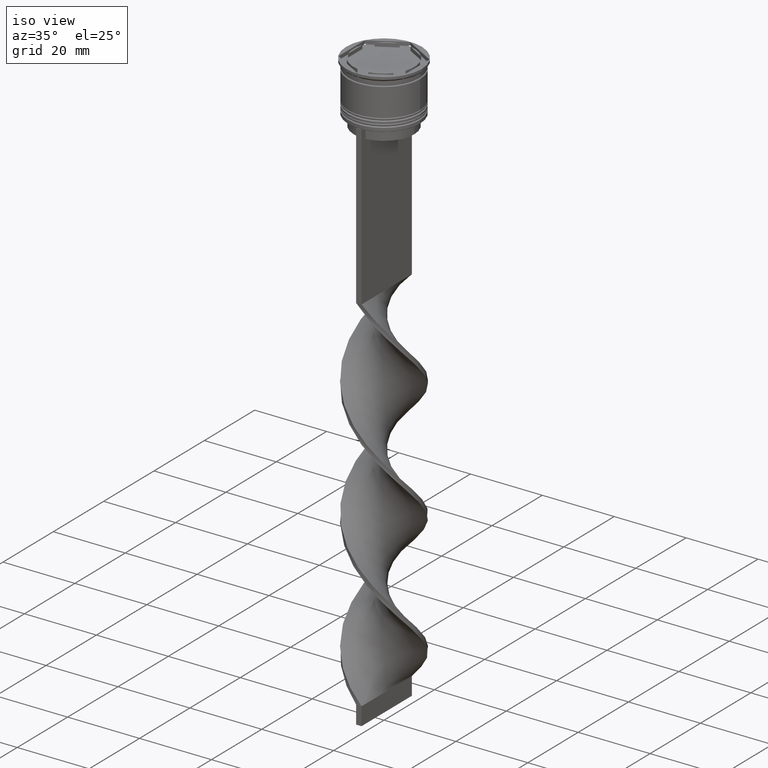
[diagram: clean part render]
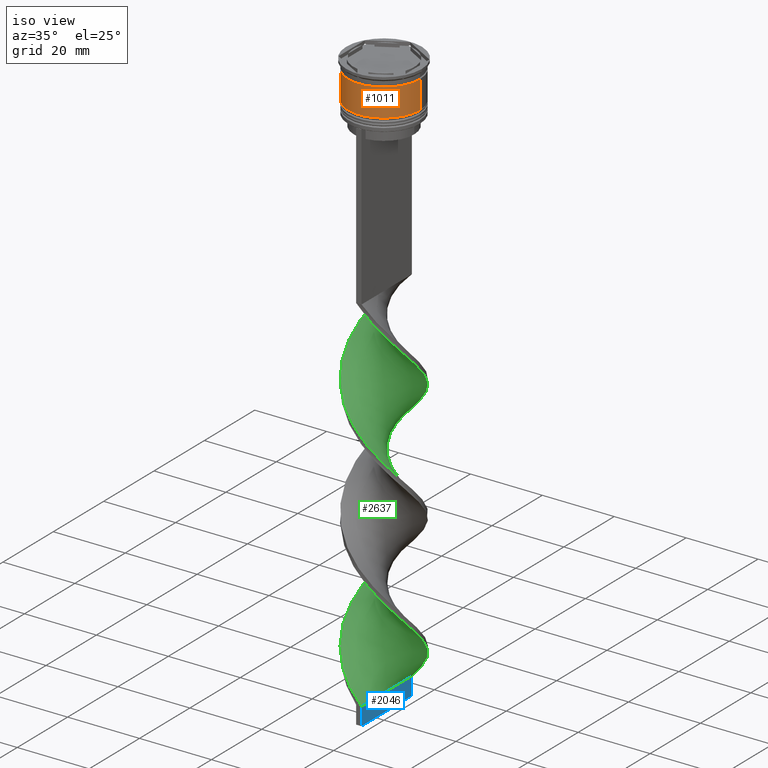
[diagram: same view with three faces highlighted in distinct colors, each labeled with its STEP entity id]
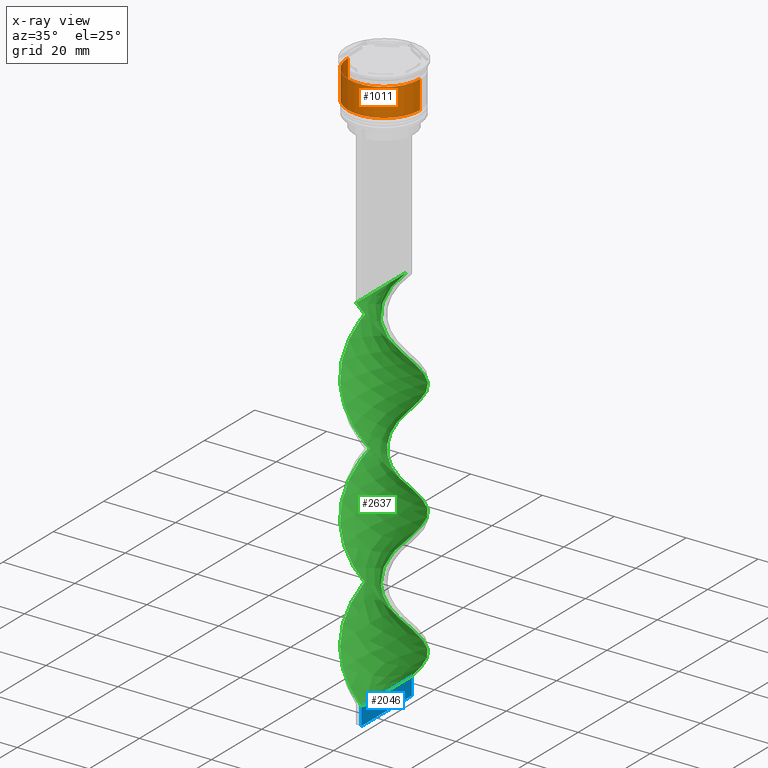
[diagram: x-ray of the same camera — body ghosted, the three highlighted faces saturated]
A machine part, iso view with three faces highlighted in distinct colors.
The next image is the same camera in x-ray (body ghosted, the three faces saturated) — at least one of them is partly hidden behind the body in this view.
Their STEP definitions:

[orange] entity #1011 — the highlighted cylindrical surface (partial cylindrical patch) has radius 10 mm, axis along (-0, -0, 1).
#68 = EDGE_LOOP ( 'NONE', ( #759, #2408, #1324, #3690 ) ) ;
#88 = DIRECTION ( 'NONE',  ( -0.000000000000000000, -0.000000000000000000, 1.000000000000000000 ) ) ;
#125 = CIRCLE ( 'NONE', #3365, 9.999999999999998224 ) ;
#135 = VECTOR ( 'NONE', #1014, 1000.000000000000000 ) ;
#285 = VERTEX_POINT ( 'NONE', #2729 ) ;
#300 = EDGE_CURVE ( 'NONE', #3012, #285, #2099, .T. ) ;
#491 = CARTESIAN_POINT ( 'NONE',  ( 10.00000000000000178, 0.000000000000000000, -10.50000000000000000 ) ) ;
#544 = DIRECTION ( 'NONE',  ( 1.000000000000000000, 0.000000000000000000, 0.000000000000000000 ) ) ;
#759 = ORIENTED_EDGE ( 'NONE', *, *, #300, .F. ) ;
#806 = EDGE_CURVE ( 'NONE', #285, #2820, #125, .T. ) ;
#820 = CARTESIAN_POINT ( 'NONE',  ( -10.00000000000000178, 1.224646799147353454E-15, -10.50000000000000000 ) ) ;
#1011 = ADVANCED_FACE ( 'NONE', ( #2470 ), #2218, .T. ) ;
#1014 = DIRECTION ( 'NONE',  ( -0.000000000000000000, -0.000000000000000000, 1.000000000000000000 ) ) ;
#1136 = DIRECTION ( 'NONE',  ( -0.000000000000000000, -0.000000000000000000, 1.000000000000000000 ) ) ;
#1144 = EDGE_CURVE ( 'NONE', #3012, #2455, #1847, .T. ) ;
#1324 = ORIENTED_EDGE ( 'NONE', *, *, #1828, .T. ) ;
#1828 = EDGE_CURVE ( 'NONE', #2455, #2820, #2522, .T. ) ;
#1847 = CIRCLE ( 'NONE', #3181, 10.00000000000000178 ) ;
#2037 = CARTESIAN_POINT ( 'NONE',  ( 0.000000000000000000, 0.000000000000000000, -10.50000000000000000 ) ) ;
#2099 = LINE ( 'NONE', #3919, #2406 ) ;
#2218 = CYLINDRICAL_SURFACE ( 'NONE', #2657, 10.00000000000000000 ) ;
#2406 = VECTOR ( 'NONE', #3349, 1000.000000000000000 ) ;
#2408 = ORIENTED_EDGE ( 'NONE', *, *, #1144, .T. ) ;
#2455 = VERTEX_POINT ( 'NONE', #491 ) ;
#2470 = FACE_OUTER_BOUND ( 'NONE', #68, .T. ) ;
#2522 = LINE ( 'NONE', #2842, #135 ) ;
#2657 = AXIS2_PLACEMENT_3D ( 'NONE', #2772, #88, #3429 ) ;
#2729 = CARTESIAN_POINT ( 'NONE',  ( -9.999999999999998224, 1.224646799147353256E-15, -2.700000000000001954 ) ) ;
#2772 = CARTESIAN_POINT ( 'NONE',  ( 0.000000000000000000, 0.000000000000000000, 0.000000000000000000 ) ) ;
#2820 = VERTEX_POINT ( 'NONE', #3475 ) ;
#2842 = CARTESIAN_POINT ( 'NONE',  ( 10.00000000000000000, 0.000000000000000000, 0.000000000000000000 ) ) ;
#3012 = VERTEX_POINT ( 'NONE', #820 ) ;
#3181 = AXIS2_PLACEMENT_3D ( 'NONE', #2037, #1136, #3284 ) ;
#3284 = DIRECTION ( 'NONE',  ( 1.000000000000000000, 0.000000000000000000, 0.000000000000000000 ) ) ;
#3349 = DIRECTION ( 'NONE',  ( -0.000000000000000000, -0.000000000000000000, 1.000000000000000000 ) ) ;
#3365 = AXIS2_PLACEMENT_3D ( 'NONE', #3909, #3835, #544 ) ;
#3429 = DIRECTION ( 'NONE',  ( 1.000000000000000000, 0.000000000000000000, 0.000000000000000000 ) ) ;
#3475 = CARTESIAN_POINT ( 'NONE',  ( 9.999999999999998224, 0.000000000000000000, -2.700000000000001954 ) ) ;
#3690 = ORIENTED_EDGE ( 'NONE', *, *, #806, .F. ) ;
#3835 = DIRECTION ( 'NONE',  ( -0.000000000000000000, -0.000000000000000000, 1.000000000000000000 ) ) ;
#3909 = CARTESIAN_POINT ( 'NONE',  ( 0.000000000000000000, 0.000000000000000000, -2.700000000000001954 ) ) ;
#3919 = CARTESIAN_POINT ( 'NONE',  ( -10.00000000000000000, 1.224646799147353256E-15, 0.000000000000000000 ) ) ;

[blue] entity #2046 — the highlighted planar face has unit normal (-1, 0, 0).
#69 = DIRECTION ( 'NONE',  ( -1.000000000000000000, 1.246832498358329853E-16, 0.000000000000000000 ) ) ;
#194 = AXIS2_PLACEMENT_3D ( 'NONE', #3688, #69, #1863 ) ;
#301 = FACE_OUTER_BOUND ( 'NONE', #681, .T. ) ;
#306 = VECTOR ( 'NONE', #3409, 1000.000000000000000 ) ;
#426 = EDGE_CURVE ( 'NONE', #1702, #3156, #3369, .T. ) ;
#501 = CARTESIAN_POINT ( 'NONE',  ( 0.7499999999999985567, -9.999999999999998224, -164.0000000000000000 ) ) ;
#636 = CARTESIAN_POINT ( 'NONE',  ( 0.7500000000000011102, 10.00000000000000533, -164.0000000000000000 ) ) ;
#681 = EDGE_LOOP ( 'NONE', ( #2736, #3253, #1569, #2830 ) ) ;
#873 = VERTEX_POINT ( 'NONE', #3030 ) ;
#1017 = CARTESIAN_POINT ( 'NONE',  ( 0.7500000000000002220, 3.333333333333337478, -159.0000000000000000 ) ) ;
#1047 = VERTEX_POINT ( 'NONE', #1297 ) ;
#1297 = CARTESIAN_POINT ( 'NONE',  ( 0.7500000000000011102, 10.00000000000000533, -159.0000000000000000 ) ) ;
#1508 = CARTESIAN_POINT ( 'NONE',  ( 0.7499999999999985567, -9.999999999999998224, -164.0000000000000000 ) ) ;
#1569 = ORIENTED_EDGE ( 'NONE', *, *, #426, .F. ) ;
#1583 = PLANE ( 'NONE',  #194 ) ;
#1702 = VERTEX_POINT ( 'NONE', #3125 ) ;
#1863 = DIRECTION ( 'NONE',  ( -1.246832498358329853E-16, -1.000000000000000000, 0.000000000000000000 ) ) ;
#1953 = LINE ( 'NONE', #2269, #3140 ) ;
#2046 = ADVANCED_FACE ( 'NONE', ( #301 ), #1583, .F. ) ;
#2233 = CARTESIAN_POINT ( 'NONE',  ( 0.7499999999999985567, -9.999999999999998224, -159.0000000000000000 ) ) ;
#2269 = CARTESIAN_POINT ( 'NONE',  ( 0.7500000000000011102, 10.00000000000000533, -164.0000000000000000 ) ) ;
#2364 = B_SPLINE_CURVE_WITH_KNOTS ( 'NONE', 3,
 ( #3128, #1017, #2827, #2233 ),
 .UNSPECIFIED., .F., .F.,
 ( 4, 4 ),
 ( 0.000000000000000000, 1.000000000000000000 ),
 .UNSPECIFIED. ) ;
#2710 = EDGE_CURVE ( 'NONE', #3156, #873, #3378, .T. ) ;
#2736 = ORIENTED_EDGE ( 'NONE', *, *, #3891, .T. ) ;
#2827 = CARTESIAN_POINT ( 'NONE',  ( 0.7499999999999994449, -3.333333333333330373, -159.0000000000000000 ) ) ;
#2830 = ORIENTED_EDGE ( 'NONE', *, *, #3847, .T. ) ;
#3030 = CARTESIAN_POINT ( 'NONE',  ( 0.7499999999999985567, -9.999999999999998224, -159.0000000000000000 ) ) ;
#3085 = DIRECTION ( 'NONE',  ( -0.000000000000000000, -0.000000000000000000, 1.000000000000000000 ) ) ;
#3125 = CARTESIAN_POINT ( 'NONE',  ( 0.7500000000000011102, 10.00000000000000533, -164.0000000000000000 ) ) ;
#3128 = CARTESIAN_POINT ( 'NONE',  ( 0.7500000000000011102, 10.00000000000000533, -159.0000000000000000 ) ) ;
#3140 = VECTOR ( 'NONE', #3797, 1000.000000000000000 ) ;
#3156 = VERTEX_POINT ( 'NONE', #501 ) ;
#3253 = ORIENTED_EDGE ( 'NONE', *, *, #2710, .F. ) ;
#3369 = LINE ( 'NONE', #636, #306 ) ;
#3378 = LINE ( 'NONE', #1508, #3883 ) ;
#3409 = DIRECTION ( 'NONE',  ( -1.246832498358329853E-16, -1.000000000000000000, 0.000000000000000000 ) ) ;
#3688 = CARTESIAN_POINT ( 'NONE',  ( 0.7500000000000011102, 10.00000000000000533, -164.0000000000000000 ) ) ;
#3797 = DIRECTION ( 'NONE',  ( -0.000000000000000000, -0.000000000000000000, 1.000000000000000000 ) ) ;
#3847 = EDGE_CURVE ( 'NONE', #1702, #1047, #1953, .T. ) ;
#3883 = VECTOR ( 'NONE', #3085, 1000.000000000000000 ) ;
#3891 = EDGE_CURVE ( 'NONE', #1047, #873, #2364, .T. ) ;

[green] entity #2637 — the highlighted face is a freeform B-spline surface patch.
#12 = CARTESIAN_POINT ( 'NONE',  ( 9.278802417170329164, -3.803462330970841521, -71.46666666666668277 ) ) ;
#20 = CARTESIAN_POINT ( 'NONE',  ( 2.812727608727952244, 9.625542239224740726, -89.42222222222223138 ) ) ;
#35 = CARTESIAN_POINT ( 'NONE',  ( -2.389970062597714495, -9.795991374453491218, -155.6333333333333258 ) ) ;
#40 = CARTESIAN_POINT ( 'NONE',  ( 10.02361530113347854, 0.2993932111503290194, -75.95555555555554861 ) ) ;
#50 = ORIENTED_EDGE ( 'NONE', *, *, #2416, .T. ) ;
#51 = CARTESIAN_POINT ( 'NONE',  ( -8.578000064855068274, -5.300124413240421717, -115.2333333333333343 ) ) ;
#58 = CARTESIAN_POINT ( 'NONE',  ( 7.288592354231113291, 6.967770475720654666, -83.81111111111111711 ) ) ;
#79 = CARTESIAN_POINT ( 'NONE',  ( 1.801042352656767598, 9.921171823550746893, -157.8777777777777942 ) ) ;
#98 = CARTESIAN_POINT ( 'NONE',  ( 2.812727608727952244, 9.625542239224740726, -156.7555555555555600 ) ) ;
#104 = CARTESIAN_POINT ( 'NONE',  ( -6.167734941832652140, -7.976995022925429168, -151.1444444444444457 ) ) ;
#118 = CARTESIAN_POINT ( 'NONE',  ( 0.7500000000000009992, 10.00000000000000533, -159.0000000000000000 ) ) ;
#123 = CARTESIAN_POINT ( 'NONE',  ( -9.035254037844385522, 4.350480947161671885, -136.5555555555555713 ) ) ;
#139 = CARTESIAN_POINT ( 'NONE',  ( -7.933296209543092559, -6.133947444480535971, -116.3555555555555685 ) ) ;
#143 =( BOUNDED_CURVE ( )  B_SPLINE_CURVE ( 2, ( #325, #2082, #584, #947, #3888, #2993, #3015, #1528, #2165, #2734, #3375, #3907, #12, #2144, #266, #3925, #1489, #3649, #2414, #1164, #2454, #1843, #1203, #881, #561, #2380, #3628, #862, #1549, #1866, #1183, #3671, #2757, #904, #2125, #3609, #3333, #3591, #3292, #602, #1220, #1785, #2697, #1822, #2398, #3034, #2435, #3526, #3082, #1099, #1568, #51, #3802, #2588, #3822, #1077, #1260, #3712, #3101, #347, #3505, #2908, #1903, #2776, #1658, #439, #775, #990, #2186, #2290, #2310, #3691, #972, #2475, #2891, #1282, #2000, #2499, #3398, #3209, #665, #1378, #2204, #1884, #3190, #2871, #364, #460, #3786, #1585, #149 ),
 .UNSPECIFIED., .F., .F. ) 
 B_SPLINE_CURVE_WITH_KNOTS ( ( 3, 2, 2, 2, 2, 2, 2, 2, 2, 2, 2, 2, 2, 2, 2, 2, 2, 2, 2, 2, 2, 2, 2, 2, 2, 2, 2, 2, 2, 2, 2, 2, 2, 2, 2, 2, 2, 2, 2, 2, 2, 2, 2, 2, 2, 3 ),
 ( 0.000000000000000000, 0.01666666666666666644, 0.03333333333333333287, 0.05000000000000000971, 0.06666666666666666574, 0.08333333333333332871, 0.1000000000000000194, 0.1166666666666666546, 0.1333333333333333315, 0.1499999999999999944, 0.1666666666666666574, 0.1833333333333333204, 0.2000000000000000389, 0.2166666666666666741, 0.2333333333333333093, 0.2500000000000000000, 0.2666666666666666630, 0.2833333333333333259, 0.2999999999999999889, 0.3166666666666666519, 0.3333333333333333148, 0.3499999999999999223, 0.3666666666666666408, 0.3833333333333333592, 0.4000000000000000777, 0.4166666666666666852, 0.4333333333333333481, 0.4500000000000000111, 0.4666666666666666186, 0.4833333333333333370, 0.5000000000000000000, 0.5166666666666667185, 0.5333333333333333259, 0.5500000000000000444, 0.5666666666666666519, 0.5833333333333333703, 0.5999999999999999778, 0.6166666666666666963, 0.6333333333333333037, 0.6500000000000000222, 0.6666666666666666297, 0.6833333333333332371, 0.6999999999999998446, 0.7166666666666666741, 0.7333333333333332815, 0.7500000000000000000 ),
 .UNSPECIFIED. ) 
 CURVE ( )  GEOMETRIC_REPRESENTATION_ITEM ( )  RATIONAL_B_SPLINE_CURVE ( ( 1.000000000000000000, 0.9945218953682732899, 1.000000000000000000, 0.9945218953682732899, 1.000000000000000000, 0.9945218953682732899, 1.000000000000000000, 0.9945218953682732899, 1.000000000000000000, 0.9945218953682732899, 1.000000000000000000, 0.9945218953682732899, 1.000000000000000000, 0.9945218953682732899, 1.000000000000000000, 0.9945218953682732899, 1.000000000000000000, 0.9945218953682732899, 1.000000000000000000, 0.9945218953682732899, 1.000000000000000000, 0.9945218953682732899, 1.000000000000000000, 0.9945218953682732899, 1.000000000000000000, 0.9945218953682732899, 1.000000000000000000, 0.9945218953682732899, 1.000000000000000000, 0.9945218953682732899, 1.000000000000000000, 0.9945218953682732899, 1.000000000000000000, 0.9945218953682732899, 1.000000000000000000, 0.9945218953682732899, 1.000000000000000000, 0.9945218953682732899, 1.000000000000000000, 0.9945218953682732899, 1.000000000000000000, 0.9945218953682732899, 1.000000000000000000, 0.9945218953682732899, 1.000000000000000000, 0.9945218953682732899, 1.000000000000000000, 0.9945218953682732899, 1.000000000000000000, 0.9945218953682732899, 1.000000000000000000, 0.9945218953682732899, 1.000000000000000000, 0.9945218953682732899, 1.000000000000000000, 0.9945218953682732899, 1.000000000000000000, 0.9945218953682732899, 1.000000000000000000, 0.9945218953682732899, 1.000000000000000000, 0.9945218953682732899, 1.000000000000000000, 0.9945218953682732899, 1.000000000000000000, 0.9945218953682732899, 1.000000000000000000, 0.9945218953682732899, 1.000000000000000000, 0.9945218953682732899, 1.000000000000000000, 0.9945218953682732899, 1.000000000000000000, 0.9945218953682732899, 1.000000000000000000, 0.9945218953682732899, 1.000000000000000000, 0.9945218953682732899, 1.000000000000000000, 0.9945218953682732899, 1.000000000000000000, 0.9945218953682732899, 1.000000000000000000, 0.9945218953682732899, 1.000000000000000000, 0.9945218953682732899, 1.000000000000000000, 0.9945218953682732899, 1.000000000000000000, 0.9945218953682732899, 1.000000000000000000 ) ) 
 REPRESENTATION_ITEM ( '' )  );
#146 = CARTESIAN_POINT ( 'NONE',  ( 6.167734941832657469, 7.976995022925425616, -117.4777777777777885 ) ) ;
#149 = CARTESIAN_POINT ( 'NONE',  ( 0.7500000000000011102, 10.00000000000000533, -159.0000000000000000 ) ) ;
#158 = CARTESIAN_POINT ( 'NONE',  ( 9.278802417170329164, -3.803462330970841521, -138.8000000000000114 ) ) ;
#163 = CARTESIAN_POINT ( 'NONE',  ( 7.933296209543083677, -6.133947444480537747, -100.6444444444444599 ) ) ;
#172 = CARTESIAN_POINT ( 'NONE',  ( 9.492508010833706322, -3.400837481082927827, -104.0111111111111200 ) ) ;
#190 = CARTESIAN_POINT ( 'NONE',  ( 10.05508279563516005, 0.7541312096726353609, -108.5000000000000000 ) ) ;
#212 = CARTESIAN_POINT ( 'NONE',  ( -4.752525523989951317, 8.830402094119156331, -129.8222222222222229 ) ) ;
#228 = CARTESIAN_POINT ( 'NONE',  ( -9.866822606231991699, -1.791176054202737955, -75.95555555555554861 ) ) ;
#247 = CARTESIAN_POINT ( 'NONE',  ( 5.680638183180771073, -8.330891533339586985, -97.27777777777778567 ) ) ;
#266 = CARTESIAN_POINT ( 'NONE',  ( 9.866822606231998805, -1.791176054202742174, -73.71111111111112280 ) ) ;
#275 = CARTESIAN_POINT ( 'NONE',  ( 0.3010423526567653774, -10.07882817644926376, -59.12222222222222712 ) ) ;
#311 = CARTESIAN_POINT ( 'NONE',  ( -4.374444612454388981, 9.085022743012229895, -97.27777777777778567 ) ) ;
#317 = CARTESIAN_POINT ( 'NONE',  ( -7.691465658176945830, -6.520334342467819511, -81.56666666666666288 ) ) ;
#325 = CARTESIAN_POINT ( 'NONE',  ( -0.7499999999999998890, -10.00000000000000533, -58.00000000000000000 ) ) ;
#329 = CARTESIAN_POINT ( 'NONE',  ( -0.3010423526567673758, -10.07882817644925666, -157.8777777777777942 ) ) ;
#334 = CARTESIAN_POINT ( 'NONE',  ( 8.879042417511833207, -4.778703763208840272, -70.34444444444443434 ) ) ;
#347 = CARTESIAN_POINT ( 'NONE',  ( -1.801042352656773593, -9.921171823550748670, -124.2111111111111370 ) ) ;
#364 = CARTESIAN_POINT ( 'NONE',  ( 4.752525523989956646, 8.830402094119161660, -154.5111111111111200 ) ) ;
#371 = CARTESIAN_POINT ( 'NONE',  ( 5.271089777143523669, -8.531008882968833973, -132.0666666666666629 ) ) ;
#377 = CARTESIAN_POINT ( 'NONE',  ( -6.484615268705940849, 7.649331004530118605, -64.73333333333333428 ) ) ;
#394 = CARTESIAN_POINT ( 'NONE',  ( 8.578000064855068274, 5.300124413240423493, -148.8999999999999488 ) ) ;
#401 = CARTESIAN_POINT ( 'NONE',  ( -7.691465658176945830, -6.520334342467819511, -148.8999999999999773 ) ) ;
#412 = CARTESIAN_POINT ( 'NONE',  ( -9.992147806631791696, -1.352917631973290291, -110.7444444444444542 ) ) ;
#419 = CARTESIAN_POINT ( 'NONE',  ( -8.879042417511827878, -4.778703763208834943, -146.6555555555555657 ) ) ;
#431 = CARTESIAN_POINT ( 'NONE',  ( -9.278802417170329164, 3.803462330970842409, -105.1333333333333400 ) ) ;
#437 = CARTESIAN_POINT ( 'NONE',  ( 2.812727608727944251, -9.625542239224735397, -93.91111111111111143 ) ) ;
#439 = CARTESIAN_POINT ( 'NONE',  ( 4.374444612454390757, -9.085022743012229895, -130.9444444444444571 ) ) ;
#452 = CARTESIAN_POINT ( 'NONE',  ( 5.680638183180779954, 8.330891533339588761, -153.3888888888889142 ) ) ;
#458 = CARTESIAN_POINT ( 'NONE',  ( -9.866822606231991699, -1.791176054202737955, -143.2888888888889198 ) ) ;
#460 = CARTESIAN_POINT ( 'NONE',  ( 3.824412864799132450, 9.329912654898734559, -155.6333333333333542 ) ) ;
#468 = CARTESIAN_POINT ( 'NONE',  ( -5.271089777143521005, -8.531008882968826867, -84.93333333333333712 ) ) ;
#474 = CARTESIAN_POINT ( 'NONE',  ( 7.288592354231104409, -6.967770475720653778, -99.52222222222223991 ) ) ;
#482 = EDGE_LOOP ( 'NONE', ( #1345, #50, #3326, #3250 ) ) ;
#486 = CARTESIAN_POINT ( 'NONE',  ( 9.278802417170323835, 3.803462330970836636, -111.8666666666666742 ) ) ;
#502 = CARTESIAN_POINT ( 'NONE',  ( 8.879042417511829655, 4.778703763208832278, -112.9888888888888943 ) ) ;
#526 = CARTESIAN_POINT ( 'NONE',  ( -6.167734941832652140, -7.976995022925429168, -83.81111111111111711 ) ) ;
#537 = CARTESIAN_POINT ( 'NONE',  ( -0.7499999999999997780, -10.00000000000000533, -58.00000000000000000 ) ) ;
#543 = CARTESIAN_POINT ( 'NONE',  ( -1.801042352656763823, 9.921171823550739788, -126.4555555555555628 ) ) ;
#561 = CARTESIAN_POINT ( 'NONE',  ( 6.484615268705946178, 7.649331004530122158, -84.93333333333333712 ) ) ;
#584 = CARTESIAN_POINT ( 'NONE',  ( 1.345506207627239936, -9.937409775451381932, -60.24444444444444713 ) ) ;
#591 = CARTESIAN_POINT ( 'NONE',  ( -5.271089777143522781, 8.531008882968833973, -98.40000000000001990 ) ) ;
#602 = CARTESIAN_POINT ( 'NONE',  ( -7.691465658176949383, 6.520334342467825728, -101.7666666666666515 ) ) ;
#604 = CARTESIAN_POINT ( 'NONE',  ( -6.929600300004799429, -7.248664682696624340, -150.0222222222222115 ) ) ;
#615 = CARTESIAN_POINT ( 'NONE',  ( -7.288592354231107073, 6.967770475720652890, -65.85555555555555429 ) ) ;
#649 = CARTESIAN_POINT ( 'NONE',  ( 0.7499999999999985567, -9.999999999999998224, -159.0000000000000000 ) ) ;
#653 = CARTESIAN_POINT ( 'NONE',  ( 1.345506207627240158, -9.937409775451381932, -60.24444444444444713 ) ) ;
#665 = CARTESIAN_POINT ( 'NONE',  ( 9.035254037844392627, 4.350480947161671885, -147.7777777777777715 ) ) ;
#671 = CARTESIAN_POINT ( 'NONE',  ( 9.278802417170329164, -3.803462330970841521, -71.46666666666668277 ) ) ;
#692 = CARTESIAN_POINT ( 'NONE',  ( 10.02361530113347854, 0.2993932111503290194, -143.2888888888889198 ) ) ;
#697 = CARTESIAN_POINT ( 'NONE',  ( -10.05508279563516005, -0.7541312096726364711, -142.1666666666666856 ) ) ;
#712 = CARTESIAN_POINT ( 'NONE',  ( -10.02361530113347854, -0.2993932111503255222, -109.6222222222222342 ) ) ;
#720 = CARTESIAN_POINT ( 'NONE',  ( 10.02361530113347321, -0.2993932111503375681, -107.3777777777777942 ) ) ;
#731 = CARTESIAN_POINT ( 'NONE',  ( 9.992147806631789919, 1.352917631973296064, -144.4111111111111541 ) ) ;
#736 = CARTESIAN_POINT ( 'NONE',  ( -5.271089777143521005, -8.531008882968826867, -152.2666666666666799 ) ) ;
#746 = CARTESIAN_POINT ( 'NONE',  ( -9.035254037844394404, -4.350480947161667444, -114.1111111111111285 ) ) ;
#751 = CARTESIAN_POINT ( 'NONE',  ( 4.752525523989947764, -8.830402094119159884, -96.15555555555556566 ) ) ;
#766 = CARTESIAN_POINT ( 'NONE',  ( -6.929600300004799429, -7.248664682696624340, -82.68888888888889710 ) ) ;
#772 = CARTESIAN_POINT ( 'NONE',  ( -1.345506207627243267, -9.937409775451374827, -89.42222222222223138 ) ) ;
#775 = CARTESIAN_POINT ( 'NONE',  ( 5.271089777143523669, -8.531008882968833973, -132.0666666666666629 ) ) ;
#786 = CARTESIAN_POINT ( 'NONE',  ( 0.7499999999999985567, -9.999999999999998224, -91.66666666666667140 ) ) ;
#804 = CARTESIAN_POINT ( 'NONE',  ( 9.866822606231991699, 1.791176054202734624, -109.6222222222222342 ) ) ;
#822 = CARTESIAN_POINT ( 'NONE',  ( 9.992147806631782814, -1.352917631973300949, -106.2555555555555742 ) ) ;
#846 = CARTESIAN_POINT ( 'NONE',  ( 6.929600300004801205, 7.248664682696623451, -116.3555555555555685 ) ) ;
#862 = CARTESIAN_POINT ( 'NONE',  ( 3.824412864799132450, 9.329912654898734559, -88.29999999999998295 ) ) ;
#863 = CARTESIAN_POINT ( 'NONE',  ( -9.278802417170323835, -3.803462330970837968, -145.5333333333333599 ) ) ;
#867 = CARTESIAN_POINT ( 'NONE',  ( 0.7499999999999985567, -9.999999999999998224, -159.0000000000000000 ) ) ;
#873 = VERTEX_POINT ( 'NONE', #3030 ) ;
#881 = CARTESIAN_POINT ( 'NONE',  ( 7.288592354231114179, 6.967770475720654666, -83.81111111111111711 ) ) ;
#883 = CARTESIAN_POINT ( 'NONE',  ( -7.691465658176945830, -6.520334342467819511, -148.8999999999999488 ) ) ;
#889 = CARTESIAN_POINT ( 'NONE',  ( 6.929600300004801205, -7.248664682696631445, -66.97777777777777430 ) ) ;
#904 = CARTESIAN_POINT ( 'NONE',  ( -2.389970062597714495, 9.795991374453500100, -95.03333333333331723 ) ) ;
#906 = CARTESIAN_POINT ( 'NONE',  ( -1.345506207627243267, -9.937409775451374827, -156.7555555555555600 ) ) ;
#917 = CARTESIAN_POINT ( 'NONE',  ( -8.879042417511827878, -4.778703763208834943, -79.32222222222222285 ) ) ;
#947 = CARTESIAN_POINT ( 'NONE',  ( 2.389970062597715383, -9.795991374453498324, -61.36666666666666003 ) ) ;
#956 = CARTESIAN_POINT ( 'NONE',  ( 9.742327908732752562, 2.376877556528110169, -78.20000000000000284 ) ) ;
#962 = CARTESIAN_POINT ( 'NONE',  ( -10.05508279563516005, -0.7541312096726364711, -74.83333333333332860 ) ) ;
#972 = CARTESIAN_POINT ( 'NONE',  ( 9.278802417170329164, -3.803462330970841521, -138.8000000000000114 ) ) ;
#990 = CARTESIAN_POINT ( 'NONE',  ( 6.167734941832653917, -7.976995022925438050, -133.1888888888889255 ) ) ;
#995 = CARTESIAN_POINT ( 'NONE',  ( 6.167734941832653028, -7.976995022925438050, -133.1888888888889255 ) ) ;
#1000 = CARTESIAN_POINT ( 'NONE',  ( 0.3010423526567729824, 10.07882817644925666, -124.2111111111111370 ) ) ;
#1015 = CARTESIAN_POINT ( 'NONE',  ( 9.035254037844392627, 4.350480947161671885, -147.7777777777777715 ) ) ;
#1017 = CARTESIAN_POINT ( 'NONE',  ( 0.7500000000000002220, 3.333333333333337478, -159.0000000000000000 ) ) ;
#1020 = CARTESIAN_POINT ( 'NONE',  ( -9.992147806631781037, 1.352917631973298285, -139.9222222222222172 ) ) ;
#1035 = CARTESIAN_POINT ( 'NONE',  ( -6.484615268705940849, 7.649331004530118605, -64.73333333333333428 ) ) ;
#1044 = CARTESIAN_POINT ( 'NONE',  ( -9.492508010833709875, 3.400837481082922498, -137.6777777777777487 ) ) ;
#1047 = VERTEX_POINT ( 'NONE', #1297 ) ;
#1053 = CARTESIAN_POINT ( 'NONE',  ( 9.678562416828825121, -2.828220898732843658, -139.9222222222222172 ) ) ;
#1058 = CARTESIAN_POINT ( 'NONE',  ( 8.578000064855062945, -5.300124413240421717, -101.7666666666666515 ) ) ;
#1069 = CARTESIAN_POINT ( 'NONE',  ( -7.288592354231107073, 6.967770475720652890, -65.85555555555555429 ) ) ;
#1075 = CARTESIAN_POINT ( 'NONE',  ( -3.824412864799129785, 9.329912654898727453, -128.7000000000000171 ) ) ;
#1077 = CARTESIAN_POINT ( 'NONE',  ( -5.680638183180781731, -8.330891533339586985, -119.7222222222222143 ) ) ;
#1090 = CARTESIAN_POINT ( 'NONE',  ( -2.389970062597714495, -9.795991374453491218, -88.29999999999998295 ) ) ;
#1099 = CARTESIAN_POINT ( 'NONE',  ( -9.492508010833716980, -3.400837481082918501, -112.9888888888888943 ) ) ;
#1110 = CARTESIAN_POINT ( 'NONE',  ( -7.288592354231107073, 6.967770475720652890, -133.1888888888889255 ) ) ;
#1127 = CARTESIAN_POINT ( 'NONE',  ( -1.345506207627243267, -9.937409775451374827, -89.42222222222223138 ) ) ;
#1146 = CARTESIAN_POINT ( 'NONE',  ( 3.382207337526058399, 9.440507058732855228, -120.8444444444444485 ) ) ;
#1164 = CARTESIAN_POINT ( 'NONE',  ( 9.492508010833715204, 3.400837481082922498, -79.32222222222222285 ) ) ;
#1165 = CARTESIAN_POINT ( 'NONE',  ( -7.691465658176945830, -6.520334342467819511, -81.56666666666664867 ) ) ;
#1183 = CARTESIAN_POINT ( 'NONE',  ( 0.7500000000000011102, 10.00000000000000533, -91.66666666666667140 ) ) ;
#1189 = CARTESIAN_POINT ( 'NONE',  ( 10.05508279563516716, -0.7541312096726378034, -74.83333333333334281 ) ) ;
#1203 = CARTESIAN_POINT ( 'NONE',  ( 7.933296209543092559, 6.133947444480536859, -82.68888888888889710 ) ) ;
#1214 = CARTESIAN_POINT ( 'NONE',  ( -9.035254037844385522, 4.350480947161671885, -69.22222222222222854 ) ) ;
#1220 = CARTESIAN_POINT ( 'NONE',  ( -8.285254037844389075, 5.649519052838336108, -102.8888888888888857 ) ) ;
#1224 = CARTESIAN_POINT ( 'NONE',  ( -3.382207337526053070, -9.440507058732857004, -154.5111111111111200 ) ) ;
#1229 = CARTESIAN_POINT ( 'NONE',  ( -2.389970062597714495, 9.795991374453500100, -95.03333333333331723 ) ) ;
#1254 = CARTESIAN_POINT ( 'NONE',  ( -9.492508010833709875, 3.400837481082922498, -70.34444444444444855 ) ) ;
#1260 = CARTESIAN_POINT ( 'NONE',  ( -4.752525523989961087, -8.830402094119159884, -120.8444444444444485 ) ) ;
#1282 = CARTESIAN_POINT ( 'NONE',  ( 10.05508279563516716, -0.7541312096726379144, -142.1666666666666856 ) ) ;
#1289 = CARTESIAN_POINT ( 'NONE',  ( -7.933296209543083677, 6.133947444480536859, -66.97777777777777430 ) ) ;
#1295 = CARTESIAN_POINT ( 'NONE',  ( -3.382207337526053070, -9.440507058732857004, -87.17777777777779136 ) ) ;
#1297 = CARTESIAN_POINT ( 'NONE',  ( 0.7500000000000011102, 10.00000000000000533, -159.0000000000000000 ) ) ;
#1307 = CARTESIAN_POINT ( 'NONE',  ( 7.933296209543092559, 6.133947444480536859, -150.0222222222222115 ) ) ;
#1313 = CARTESIAN_POINT ( 'NONE',  ( -4.374444612454390757, -9.085022743012221014, -86.05555555555557135 ) ) ;
#1330 = CARTESIAN_POINT ( 'NONE',  ( -3.824412864799129341, 9.329912654898729230, -61.36666666666666003 ) ) ;
#1335 = CARTESIAN_POINT ( 'NONE',  ( -0.7499999999999997780, 9.999999999999998224, -125.3333333333333570 ) ) ;
#1345 = ORIENTED_EDGE ( 'NONE', *, *, #2200, .T. ) ;
#1351 = CARTESIAN_POINT ( 'NONE',  ( -2.812727608727953577, -9.625542239224740726, -123.0888888888888886 ) ) ;
#1359 = CARTESIAN_POINT ( 'NONE',  ( -5.680638183180772849, 8.330891533339585209, -130.9444444444444571 ) ) ;
#1370 = CARTESIAN_POINT ( 'NONE',  ( 9.866822606231998805, -1.791176054202741952, -141.0444444444444514 ) ) ;
#1376 = CARTESIAN_POINT ( 'NONE',  ( 0.7499999999999985567, -9.999999999999998224, -91.66666666666667140 ) ) ;
#1378 = CARTESIAN_POINT ( 'NONE',  ( 8.578000064855070050, 5.300124413240422605, -148.8999999999999773 ) ) ;
#1387 = CARTESIAN_POINT ( 'NONE',  ( -8.285254037844385522, -5.649519052838325450, -80.44444444444445708 ) ) ;
#1411 = CARTESIAN_POINT ( 'NONE',  ( 5.271089777143521893, 8.531008882968826867, -118.6000000000000085 ) ) ;
#1430 = CARTESIAN_POINT ( 'NONE',  ( -5.680638183180772849, 8.330891533339585209, -130.9444444444444287 ) ) ;
#1450 = CARTESIAN_POINT ( 'NONE',  ( -0.3010423526567673758, -10.07882817644925666, -90.54444444444445139 ) ) ;
#1467 = CARTESIAN_POINT ( 'NONE',  ( 7.933296209543083677, -6.133947444480537747, -100.6444444444444599 ) ) ;
#1489 = CARTESIAN_POINT ( 'NONE',  ( 10.02361530113347854, 0.2993932111503289084, -75.95555555555554861 ) ) ;
#1495 = CARTESIAN_POINT ( 'NONE',  ( 8.578000064855068274, 5.300124413240423493, -81.56666666666664867 ) ) ;
#1515 = CARTESIAN_POINT ( 'NONE',  ( -0.7499999999999997780, -10.00000000000000533, -58.00000000000000000 ) ) ;
#1520 = CARTESIAN_POINT ( 'NONE',  ( -1.801042352656763823, 9.921171823550741564, -59.12222222222222712 ) ) ;
#1528 = CARTESIAN_POINT ( 'NONE',  ( 6.167734941832653917, -7.976995022925438050, -65.85555555555555429 ) ) ;
#1535 = CARTESIAN_POINT ( 'NONE',  ( 5.271089777143523669, -8.531008882968833973, -64.73333333333333428 ) ) ;
#1541 = CARTESIAN_POINT ( 'NONE',  ( -6.929600300004799429, -7.248664682696624340, -82.68888888888889710 ) ) ;
#1549 = CARTESIAN_POINT ( 'NONE',  ( 2.812727608727952688, 9.625542239224740726, -89.42222222222223138 ) ) ;
#1553 = CARTESIAN_POINT ( 'NONE',  ( -9.866822606231991699, -1.791176054202737955, -143.2888888888889198 ) ) ;
#1557 = CARTESIAN_POINT ( 'NONE',  ( 9.992147806631789919, 1.352917631973296064, -77.07777777777778283 ) ) ;
#1562 = CARTESIAN_POINT ( 'NONE',  ( -3.824412864799129785, 9.329912654898727453, -61.36666666666666003 ) ) ;
#1568 = CARTESIAN_POINT ( 'NONE',  ( -9.035254037844394404, -4.350480947161666556, -114.1111111111111285 ) ) ;
#1574 = CARTESIAN_POINT ( 'NONE',  ( 4.374444612454390757, -9.085022743012229895, -63.61111111111111427 ) ) ;
#1585 = CARTESIAN_POINT ( 'NONE',  ( 1.801042352656767820, 9.921171823550748670, -157.8777777777777942 ) ) ;
#1594 = CARTESIAN_POINT ( 'NONE',  ( 3.382207337526053958, -9.440507058732864110, -129.8222222222222229 ) ) ;
#1601 = CARTESIAN_POINT ( 'NONE',  ( -9.278802417170323835, -3.803462330970837968, -78.20000000000000284 ) ) ;
#1616 = CARTESIAN_POINT ( 'NONE',  ( -1.801042352656773371, -9.921171823550746893, -124.2111111111111370 ) ) ;
#1622 = CARTESIAN_POINT ( 'NONE',  ( -6.929600300004799429, -7.248664682696624340, -150.0222222222222115 ) ) ;
#1634 = CARTESIAN_POINT ( 'NONE',  ( -4.752525523989961087, -8.830402094119159884, -120.8444444444444485 ) ) ;
#1640 = CARTESIAN_POINT ( 'NONE',  ( 8.285254037844389075, 5.649519052838321009, -114.1111111111111285 ) ) ;
#1650 = CARTESIAN_POINT ( 'NONE',  ( -0.7499999999999997780, 9.999999999999998224, -58.00000000000000000 ) ) ;
#1651 = CARTESIAN_POINT ( 'NONE',  ( -9.742327908732752562, -2.376877556528108837, -111.8666666666666742 ) ) ;
#1656 = CARTESIAN_POINT ( 'NONE',  ( -0.3010423526567673758, -10.07882817644925666, -90.54444444444445139 ) ) ;
#1658 = CARTESIAN_POINT ( 'NONE',  ( 3.382207337526053514, -9.440507058732864110, -129.8222222222222229 ) ) ;
#1673 = CARTESIAN_POINT ( 'NONE',  ( -7.691465658176949383, 6.520334342467825728, -101.7666666666666515 ) ) ;
#1679 = CARTESIAN_POINT ( 'NONE',  ( -2.389970062597714495, -9.795991374453491218, -88.29999999999998295 ) ) ;
#1683 = VERTEX_POINT ( 'NONE', #1650 ) ;
#1690 = CARTESIAN_POINT ( 'NONE',  ( -4.374444612454390757, -9.085022743012221014, -86.05555555555557135 ) ) ;
#1696 = CARTESIAN_POINT ( 'NONE',  ( -7.288592354231107073, 6.967770475720652890, -133.1888888888889255 ) ) ;
#1707 = CARTESIAN_POINT ( 'NONE',  ( 7.691465658176945830, 6.520334342467818622, -115.2333333333333343 ) ) ;
#1729 = CARTESIAN_POINT ( 'NONE',  ( 4.374444612454391645, 9.085022743012221014, -119.7222222222222143 ) ) ;
#1751 = CARTESIAN_POINT ( 'NONE',  ( 8.285254037844389075, 5.649519052838321009, -114.1111111111111285 ) ) ;
#1767 = CARTESIAN_POINT ( 'NONE',  ( -8.578000064855064721, 5.300124413240420829, -135.4333333333333371 ) ) ;
#1777 = LINE ( 'NONE', #537, #3817 ) ;
#1785 = CARTESIAN_POINT ( 'NONE',  ( -8.879042417511829655, 4.778703763208845601, -104.0111111111111057 ) ) ;
#1806 = CARTESIAN_POINT ( 'NONE',  ( -10.05508279563516005, -0.7541312096726364711, -142.1666666666666856 ) ) ;
#1822 = CARTESIAN_POINT ( 'NONE',  ( -9.678562416828825121, 2.828220898732847655, -106.2555555555555742 ) ) ;
#1830 = CARTESIAN_POINT ( 'NONE',  ( 9.492508010833715204, 3.400837481082922498, -79.32222222222222285 ) ) ;
#1835 = CARTESIAN_POINT ( 'NONE',  ( -9.992147806631781037, 1.352917631973298285, -72.58888888888890278 ) ) ;
#1843 = CARTESIAN_POINT ( 'NONE',  ( 8.578000064855070050, 5.300124413240422605, -81.56666666666666288 ) ) ;
#1851 = CARTESIAN_POINT ( 'NONE',  ( 3.382207337526053958, -9.440507058732864110, -62.48888888888889426 ) ) ;
#1866 = CARTESIAN_POINT ( 'NONE',  ( 1.801042352656767820, 9.921171823550748670, -90.54444444444445139 ) ) ;
#1870 = CARTESIAN_POINT ( 'NONE',  ( -5.271089777143521005, -8.531008882968826867, -152.2666666666666799 ) ) ;
#1873 = CARTESIAN_POINT ( 'NONE',  ( 9.678562416828825121, -2.828220898732843658, -72.58888888888890278 ) ) ;
#1884 = CARTESIAN_POINT ( 'NONE',  ( 7.288592354231114179, 6.967770475720654666, -151.1444444444444457 ) ) ;
#1891 = CARTESIAN_POINT ( 'NONE',  ( -8.578000064855068274, -5.300124413240422605, -115.2333333333333343 ) ) ;
#1903 = CARTESIAN_POINT ( 'NONE',  ( 1.345506207627239936, -9.937409775451381932, -127.5777777777777828 ) ) ;
#1911 = CARTESIAN_POINT ( 'NONE',  ( -9.492508010833716980, -3.400837481082918945, -112.9888888888888943 ) ) ;
#1918 = CARTESIAN_POINT ( 'NONE',  ( -9.678562416828821569, -2.828220898732839661, -144.4111111111111256 ) ) ;
#1934 = CARTESIAN_POINT ( 'NONE',  ( -3.824412864799134226, -9.329912654898736335, -121.9666666666666544 ) ) ;
#1940 = CARTESIAN_POINT ( 'NONE',  ( -5.271089777143521005, -8.531008882968826867, -84.93333333333333712 ) ) ;
#1951 = CARTESIAN_POINT ( 'NONE',  ( -8.879042417511829655, 4.778703763208845601, -104.0111111111111200 ) ) ;
#1957 = CARTESIAN_POINT ( 'NONE',  ( -3.382207337526053070, -9.440507058732857004, -154.5111111111111200 ) ) ;
#1970 = CARTESIAN_POINT ( 'NONE',  ( -7.288592354231117731, -6.967770475720651113, -117.4777777777777885 ) ) ;
#1976 = CARTESIAN_POINT ( 'NONE',  ( 3.382207337526058399, 9.440507058732855228, -120.8444444444444485 ) ) ;
#1992 = CARTESIAN_POINT ( 'NONE',  ( -9.678562416828821569, -2.828220898732839217, -77.07777777777778283 ) ) ;
#1998 = CARTESIAN_POINT ( 'NONE',  ( 5.680638183180771073, -8.330891533339586985, -97.27777777777779988 ) ) ;
#2000 = CARTESIAN_POINT ( 'NONE',  ( 10.02361530113347854, 0.2993932111503289084, -143.2888888888889198 ) ) ;
#2008 = CARTESIAN_POINT ( 'NONE',  ( 3.824412864799128009, -9.329912654898731006, -95.03333333333331723 ) ) ;
#2013 = CARTESIAN_POINT ( 'NONE',  ( -1.345506207627243267, -9.937409775451374827, -156.7555555555555600 ) ) ;
#2026 = CARTESIAN_POINT ( 'NONE',  ( 9.678562416828823345, 2.828220898732833444, -110.7444444444444542 ) ) ;
#2034 = CARTESIAN_POINT ( 'NONE',  ( -0.3010423526567673758, -10.07882817644925666, -157.8777777777777942 ) ) ;
#2047 = CARTESIAN_POINT ( 'NONE',  ( 6.167734941832656581, 7.976995022925425616, -117.4777777777777885 ) ) ;
#2066 = CARTESIAN_POINT ( 'NONE',  ( 2.389970062597715827, 9.795991374453491218, -121.9666666666666544 ) ) ;
#2082 = CARTESIAN_POINT ( 'NONE',  ( 0.3010423526567652663, -10.07882817644926376, -59.12222222222222712 ) ) ;
#2084 = CARTESIAN_POINT ( 'NONE',  ( -8.285254037844385522, -5.649519052838325450, -147.7777777777777715 ) ) ;
#2113 = CARTESIAN_POINT ( 'NONE',  ( -3.382207337526049962, 9.440507058732864110, -96.15555555555556566 ) ) ;
#2125 = CARTESIAN_POINT ( 'NONE',  ( -3.382207337526049962, 9.440507058732864110, -96.15555555555556566 ) ) ;
#2132 = CARTESIAN_POINT ( 'NONE',  ( 9.035254037844392627, 4.350480947161671885, -80.44444444444445708 ) ) ;
#2138 = CARTESIAN_POINT ( 'NONE',  ( -8.285254037844385522, -5.649519052838325450, -80.44444444444445708 ) ) ;
#2144 = CARTESIAN_POINT ( 'NONE',  ( 9.678562416828826898, -2.828220898732844102, -72.58888888888890278 ) ) ;
#2152 = CARTESIAN_POINT ( 'NONE',  ( 6.167734941832653028, -7.976995022925438050, -65.85555555555555429 ) ) ;
#2165 = CARTESIAN_POINT ( 'NONE',  ( 6.929600300004801205, -7.248664682696631445, -66.97777777777777430 ) ) ;
#2171 = CARTESIAN_POINT ( 'NONE',  ( 6.484615268705946178, 7.649331004530122158, -84.93333333333333712 ) ) ;
#2186 = CARTESIAN_POINT ( 'NONE',  ( 6.929600300004801205, -7.248664682696631445, -134.3111111111111313 ) ) ;
#2192 = CARTESIAN_POINT ( 'NONE',  ( 2.389970062597715383, -9.795991374453498324, -61.36666666666666003 ) ) ;
#2197 = CARTESIAN_POINT ( 'NONE',  ( -9.742327908732745456, 2.376877556528109725, -71.46666666666668277 ) ) ;
#2200 = EDGE_CURVE ( 'NONE', #2754, #1683, #1777, .T. ) ;
#2204 = CARTESIAN_POINT ( 'NONE',  ( 7.933296209543092559, 6.133947444480536859, -150.0222222222222115 ) ) ;
#2210 = CARTESIAN_POINT ( 'NONE',  ( 2.389970062597715383, -9.795991374453498324, -128.6999999999999886 ) ) ;
#2216 = CARTESIAN_POINT ( 'NONE',  ( -6.167734941832652140, -7.976995022925429168, -83.81111111111111711 ) ) ;
#2231 = CARTESIAN_POINT ( 'NONE',  ( 4.752525523989956646, 8.830402094119161660, -154.5111111111111200 ) ) ;
#2233 = CARTESIAN_POINT ( 'NONE',  ( 0.7499999999999985567, -9.999999999999998224, -159.0000000000000000 ) ) ;
#2237 = CARTESIAN_POINT ( 'NONE',  ( -2.812727608727946471, 9.625542239224735397, -127.5777777777777828 ) ) ;
#2251 = CARTESIAN_POINT ( 'NONE',  ( -8.578000064855064721, 5.300124413240420829, -68.10000000000002274 ) ) ;
#2257 = CARTESIAN_POINT ( 'NONE',  ( 8.879042417511829655, 4.778703763208831390, -112.9888888888888943 ) ) ;
#2267 = CARTESIAN_POINT ( 'NONE',  ( 6.484615268705946178, 7.649331004530122158, -152.2666666666666799 ) ) ;
#2272 = CARTESIAN_POINT ( 'NONE',  ( 9.492508010833706322, -3.400837481082927827, -104.0111111111111057 ) ) ;
#2283 = CARTESIAN_POINT ( 'NONE',  ( -9.678562416828825121, 2.828220898732847211, -106.2555555555555742 ) ) ;
#2288 = CARTESIAN_POINT ( 'NONE',  ( 2.389970062597715827, 9.795991374453491218, -121.9666666666666544 ) ) ;
#2290 = CARTESIAN_POINT ( 'NONE',  ( 7.691465658176951159, -6.520334342467825728, -135.4333333333333371 ) ) ;
#2302 =( BOUNDED_CURVE ( )  B_SPLINE_CURVE ( 2, ( #2490, #1520, #3643, #1562, #3113, #2770, #377, #615, #2811, #2409, #1214, #1254, #2197, #1835, #3684, #962, #2429, #3408, #1601, #917, #2138, #317, #1541, #2216, #1940, #1313, #1295, #1679, #772, #1656, #1376, #3764, #437, #3132, #751, #1998, #2869, #474, #163, #1058, #3427, #2272, #3450, #3187, #720, #2511, #2586, #3723, #2528, #2257, #1640, #3503, #3741, #146, #2889, #2549, #1976, #2288, #3152, #1000, #1335, #2831, #2237, #1075, #2850, #1359, #3784, #1696, #3800, #3207, #123, #1044, #3484, #1020, #2906, #697, #458, #1918, #2570, #419, #3467, #401, #1622, #104, #736, #3168, #1957, #2980, #2013, #2034, #867 ),
 .UNSPECIFIED., .F., .F. ) 
 B_SPLINE_CURVE_WITH_KNOTS ( ( 3, 2, 2, 2, 2, 2, 2, 2, 2, 2, 2, 2, 2, 2, 2, 2, 2, 2, 2, 2, 2, 2, 2, 2, 2, 2, 2, 2, 2, 2, 2, 2, 2, 2, 2, 2, 2, 2, 2, 2, 2, 2, 2, 2, 2, 3 ),
 ( 0.000000000000000000, 0.01666666666666666644, 0.03333333333333333287, 0.05000000000000000971, 0.06666666666666666574, 0.08333333333333332871, 0.1000000000000000194, 0.1166666666666666546, 0.1333333333333333315, 0.1499999999999999944, 0.1666666666666666574, 0.1833333333333333204, 0.2000000000000000389, 0.2166666666666666741, 0.2333333333333333093, 0.2500000000000000000, 0.2666666666666666630, 0.2833333333333333259, 0.2999999999999999889, 0.3166666666666666519, 0.3333333333333333148, 0.3499999999999999223, 0.3666666666666666408, 0.3833333333333333592, 0.4000000000000000777, 0.4166666666666666852, 0.4333333333333333481, 0.4500000000000000111, 0.4666666666666666186, 0.4833333333333333370, 0.5000000000000000000, 0.5166666666666667185, 0.5333333333333333259, 0.5500000000000000444, 0.5666666666666666519, 0.5833333333333333703, 0.5999999999999999778, 0.6166666666666666963, 0.6333333333333333037, 0.6500000000000000222, 0.6666666666666666297, 0.6833333333333332371, 0.6999999999999998446, 0.7166666666666666741, 0.7333333333333332815, 0.7500000000000000000 ),
 .UNSPECIFIED. ) 
 CURVE ( )  GEOMETRIC_REPRESENTATION_ITEM ( )  RATIONAL_B_SPLINE_CURVE ( ( 1.000000000000000000, 0.9945218953682732899, 1.000000000000000000, 0.9945218953682732899, 1.000000000000000000, 0.9945218953682732899, 1.000000000000000000, 0.9945218953682732899, 1.000000000000000000, 0.9945218953682732899, 1.000000000000000000, 0.9945218953682732899, 1.000000000000000000, 0.9945218953682732899, 1.000000000000000000, 0.9945218953682732899, 1.000000000000000000, 0.9945218953682732899, 1.000000000000000000, 0.9945218953682732899, 1.000000000000000000, 0.9945218953682732899, 1.000000000000000000, 0.9945218953682732899, 1.000000000000000000, 0.9945218953682732899, 1.000000000000000000, 0.9945218953682732899, 1.000000000000000000, 0.9945218953682732899, 1.000000000000000000, 0.9945218953682732899, 1.000000000000000000, 0.9945218953682732899, 1.000000000000000000, 0.9945218953682732899, 1.000000000000000000, 0.9945218953682732899, 1.000000000000000000, 0.9945218953682732899, 1.000000000000000000, 0.9945218953682732899, 1.000000000000000000, 0.9945218953682732899, 1.000000000000000000, 0.9945218953682732899, 1.000000000000000000, 0.9945218953682732899, 1.000000000000000000, 0.9945218953682732899, 1.000000000000000000, 0.9945218953682732899, 1.000000000000000000, 0.9945218953682732899, 1.000000000000000000, 0.9945218953682732899, 1.000000000000000000, 0.9945218953682732899, 1.000000000000000000, 0.9945218953682732899, 1.000000000000000000, 0.9945218953682732899, 1.000000000000000000, 0.9945218953682732899, 1.000000000000000000, 0.9945218953682732899, 1.000000000000000000, 0.9945218953682732899, 1.000000000000000000, 0.9945218953682732899, 1.000000000000000000, 0.9945218953682732899, 1.000000000000000000, 0.9945218953682732899, 1.000000000000000000, 0.9945218953682732899, 1.000000000000000000, 0.9945218953682732899, 1.000000000000000000, 0.9945218953682732899, 1.000000000000000000, 0.9945218953682732899, 1.000000000000000000, 0.9945218953682732899, 1.000000000000000000, 0.9945218953682732899, 1.000000000000000000, 0.9945218953682732899, 1.000000000000000000, 0.9945218953682732899, 1.000000000000000000 ) ) 
 REPRESENTATION_ITEM ( '' )  );
#2304 = CARTESIAN_POINT ( 'NONE',  ( -9.992147806631781037, 1.352917631973298285, -72.58888888888890278 ) ) ;
#2310 = CARTESIAN_POINT ( 'NONE',  ( 8.285254037844389075, -5.649519052838332556, -136.5555555555555713 ) ) ;
#2323 = CARTESIAN_POINT ( 'NONE',  ( -10.02361530113347143, 0.2993932111503319060, -73.71111111111112280 ) ) ;
#2333 = DIRECTION ( 'NONE',  ( 0.000000000000000000, 1.000000000000000000, 0.000000000000000000 ) ) ;
#2339 = CARTESIAN_POINT ( 'NONE',  ( -10.05508279563516005, -0.7541312096726364711, -74.83333333333334281 ) ) ;
#2361 = CARTESIAN_POINT ( 'NONE',  ( -6.484615268705940849, 7.649331004530118605, -132.0666666666666629 ) ) ;
#2364 = B_SPLINE_CURVE_WITH_KNOTS ( 'NONE', 3,
 ( #3128, #1017, #2827, #2233 ),
 .UNSPECIFIED., .F., .F.,
 ( 4, 4 ),
 ( 0.000000000000000000, 1.000000000000000000 ),
 .UNSPECIFIED. ) ;
#2380 = CARTESIAN_POINT ( 'NONE',  ( 5.680638183180779954, 8.330891533339588761, -86.05555555555557135 ) ) ;
#2381 = CARTESIAN_POINT ( 'NONE',  ( -9.278802417170323835, -3.803462330970837968, -78.20000000000000284 ) ) ;
#2398 = CARTESIAN_POINT ( 'NONE',  ( -9.866822606231997028, 1.791176054202747725, -107.3777777777777942 ) ) ;
#2403 = CARTESIAN_POINT ( 'NONE',  ( 0.7500000000000009992, 10.00000000000000533, -91.66666666666667140 ) ) ;
#2409 = CARTESIAN_POINT ( 'NONE',  ( -8.578000064855064721, 5.300124413240420829, -68.10000000000000853 ) ) ;
#2414 = CARTESIAN_POINT ( 'NONE',  ( 9.742327908732752562, 2.376877556528110169, -78.20000000000000284 ) ) ;
#2416 = EDGE_CURVE ( 'NONE', #1683, #873, #2302, .T. ) ;
#2429 = CARTESIAN_POINT ( 'NONE',  ( -9.866822606231991699, -1.791176054202737955, -75.95555555555554861 ) ) ;
#2435 = CARTESIAN_POINT ( 'NONE',  ( -10.02361530113347854, -0.2993932111503254112, -109.6222222222222342 ) ) ;
#2443 = CARTESIAN_POINT ( 'NONE',  ( -6.167734941832652140, 7.976995022925438050, -99.52222222222223991 ) ) ;
#2454 = CARTESIAN_POINT ( 'NONE',  ( 9.035254037844392627, 4.350480947161671885, -80.44444444444445708 ) ) ;
#2456 = CARTESIAN_POINT ( 'NONE',  ( -8.879042417511827878, -4.778703763208835831, -146.6555555555555657 ) ) ;
#2461 = CARTESIAN_POINT ( 'NONE',  ( 7.691465658176951159, -6.520334342467824840, -68.10000000000002274 ) ) ;
#2475 = CARTESIAN_POINT ( 'NONE',  ( 9.678562416828826898, -2.828220898732844102, -139.9222222222222172 ) ) ;
#2490 = CARTESIAN_POINT ( 'NONE',  ( -0.7499999999999997780, 9.999999999999998224, -58.00000000000000000 ) ) ;
#2499 = CARTESIAN_POINT ( 'NONE',  ( 9.992147806631788143, 1.352917631973295620, -144.4111111111111256 ) ) ;
#2505 = CARTESIAN_POINT ( 'NONE',  ( -0.7499999999999997780, -10.00000000000000533, -125.3333333333333570 ) ) ;
#2511 = CARTESIAN_POINT ( 'NONE',  ( 10.05508279563516005, 0.7541312096726352499, -108.5000000000000000 ) ) ;
#2523 = CARTESIAN_POINT ( 'NONE',  ( 3.824412864799132450, 9.329912654898736335, -155.6333333333333258 ) ) ;
#2528 = CARTESIAN_POINT ( 'NONE',  ( 9.278802417170323835, 3.803462330970836636, -111.8666666666666742 ) ) ;
#2543 = CARTESIAN_POINT ( 'NONE',  ( -4.752525523989951317, 8.830402094119156331, -62.48888888888889426 ) ) ;
#2549 = CARTESIAN_POINT ( 'NONE',  ( 4.374444612454392534, 9.085022743012221014, -119.7222222222222143 ) ) ;
#2564 = CARTESIAN_POINT ( 'NONE',  ( 9.492508010833715204, 3.400837481082922498, -146.6555555555555657 ) ) ;
#2570 = CARTESIAN_POINT ( 'NONE',  ( -9.278802417170323835, -3.803462330970837968, -145.5333333333333599 ) ) ;
#2580 = CARTESIAN_POINT ( 'NONE',  ( -1.801042352656763823, 9.921171823550739788, -59.12222222222222712 ) ) ;
#2586 = CARTESIAN_POINT ( 'NONE',  ( 9.866822606231991699, 1.791176054202734624, -109.6222222222222342 ) ) ;
#2588 = CARTESIAN_POINT ( 'NONE',  ( -7.288592354231117731, -6.967770475720650225, -117.4777777777777885 ) ) ;
#2599 = CARTESIAN_POINT ( 'NONE',  ( 4.752525523989947764, -8.830402094119159884, -96.15555555555556566 ) ) ;
#2622 = CARTESIAN_POINT ( 'NONE',  ( 0.3010423526567729824, 10.07882817644925666, -124.2111111111111370 ) ) ;
#2637 = ADVANCED_FACE ( 'NONE', ( #3700 ), #3238, .T. ) ;
#2640 = CARTESIAN_POINT ( 'NONE',  ( -7.933296209543083677, 6.133947444480536859, -134.3111111111111313 ) ) ;
#2658 = CARTESIAN_POINT ( 'NONE',  ( 10.02361530113347321, -0.2993932111503375681, -107.3777777777777942 ) ) ;
#2680 = CARTESIAN_POINT ( 'NONE',  ( -9.035254037844385522, 4.350480947161671885, -136.5555555555555713 ) ) ;
#2697 = CARTESIAN_POINT ( 'NONE',  ( -9.278802417170329164, 3.803462330970842409, -105.1333333333333400 ) ) ;
#2702 = CARTESIAN_POINT ( 'NONE',  ( 3.824412864799132450, 9.329912654898736335, -88.29999999999998295 ) ) ;
#2720 = CARTESIAN_POINT ( 'NONE',  ( 4.752525523989956646, 8.830402094119161660, -87.17777777777779136 ) ) ;
#2734 = CARTESIAN_POINT ( 'NONE',  ( 7.691465658176951159, -6.520334342467825728, -68.10000000000000853 ) ) ;
#2743 = CARTESIAN_POINT ( 'NONE',  ( 7.933296209543092559, 6.133947444480536859, -82.68888888888889710 ) ) ;
#2754 = VERTEX_POINT ( 'NONE', #2779 ) ;
#2757 = CARTESIAN_POINT ( 'NONE',  ( -1.345506207627237716, 9.937409775451381932, -93.91111111111111143 ) ) ;
#2765 = CARTESIAN_POINT ( 'NONE',  ( 9.866822606231998805, -1.791176054202741952, -73.71111111111112280 ) ) ;
#2770 = CARTESIAN_POINT ( 'NONE',  ( -5.680638183180772849, 8.330891533339585209, -63.61111111111112137 ) ) ;
#2776 = CARTESIAN_POINT ( 'NONE',  ( 2.389970062597715383, -9.795991374453498324, -128.7000000000000171 ) ) ;
#2779 = CARTESIAN_POINT ( 'NONE',  ( -0.7499999999999998890, -10.00000000000000533, -58.00000000000000000 ) ) ;
#2804 = CARTESIAN_POINT ( 'NONE',  ( 9.742327908732752562, 2.376877556528110169, -145.5333333333333599 ) ) ;
#2811 = CARTESIAN_POINT ( 'NONE',  ( -7.933296209543083677, 6.133947444480536859, -66.97777777777777430 ) ) ;
#2825 = CARTESIAN_POINT ( 'NONE',  ( -6.929600300004800317, 7.248664682696634110, -100.6444444444444599 ) ) ;
#2827 = CARTESIAN_POINT ( 'NONE',  ( 0.7499999999999994449, -3.333333333333330373, -159.0000000000000000 ) ) ;
#2831 = CARTESIAN_POINT ( 'NONE',  ( -1.801042352656763823, 9.921171823550741564, -126.4555555555555770 ) ) ;
#2843 = CARTESIAN_POINT ( 'NONE',  ( 7.288592354231113291, 6.967770475720654666, -151.1444444444444457 ) ) ;
#2850 = CARTESIAN_POINT ( 'NONE',  ( -4.752525523989951317, 8.830402094119156331, -129.8222222222222229 ) ) ;
#2862 = CARTESIAN_POINT ( 'NONE',  ( 6.929600300004801205, -7.248664682696631445, -134.3111111111111313 ) ) ;
#2869 = CARTESIAN_POINT ( 'NONE',  ( 6.484615268705939073, -7.649331004530118605, -98.40000000000001990 ) ) ;
#2871 = CARTESIAN_POINT ( 'NONE',  ( 5.680638183180779954, 8.330891533339588761, -153.3888888888889142 ) ) ;
#2883 = CARTESIAN_POINT ( 'NONE',  ( -10.05508279563516716, 0.7541312096726390246, -108.5000000000000000 ) ) ;
#2889 = CARTESIAN_POINT ( 'NONE',  ( 5.271089777143521893, 8.531008882968826867, -118.6000000000000085 ) ) ;
#2891 = CARTESIAN_POINT ( 'NONE',  ( 9.866822606231998805, -1.791176054202742174, -141.0444444444444514 ) ) ;
#2900 = CARTESIAN_POINT ( 'NONE',  ( 2.812727608727944251, -9.625542239224735397, -93.91111111111111143 ) ) ;
#2906 = CARTESIAN_POINT ( 'NONE',  ( -10.02361530113347143, 0.2993932111503319060, -141.0444444444444514 ) ) ;
#2908 = CARTESIAN_POINT ( 'NONE',  ( 0.3010423526567652663, -10.07882817644926376, -126.4555555555555770 ) ) ;
#2920 = CARTESIAN_POINT ( 'NONE',  ( 8.578000064855062945, -5.300124413240421717, -101.7666666666666515 ) ) ;
#2940 = CARTESIAN_POINT ( 'NONE',  ( -2.812727608727946471, 9.625542239224735397, -127.5777777777777828 ) ) ;
#2957 = CARTESIAN_POINT ( 'NONE',  ( -9.992147806631781037, 1.352917631973298285, -139.9222222222222172 ) ) ;
#2975 = CARTESIAN_POINT ( 'NONE',  ( 6.484615268705939073, -7.649331004530118605, -98.40000000000001990 ) ) ;
#2980 = CARTESIAN_POINT ( 'NONE',  ( -2.389970062597714495, -9.795991374453491218, -155.6333333333333542 ) ) ;
#2993 = CARTESIAN_POINT ( 'NONE',  ( 4.374444612454390757, -9.085022743012229895, -63.61111111111112137 ) ) ;
#3015 = CARTESIAN_POINT ( 'NONE',  ( 5.271089777143523669, -8.531008882968833973, -64.73333333333333428 ) ) ;
#3016 = CARTESIAN_POINT ( 'NONE',  ( -9.678562416828821569, -2.828220898732839217, -144.4111111111111541 ) ) ;
#3030 = CARTESIAN_POINT ( 'NONE',  ( 0.7499999999999985567, -9.999999999999998224, -159.0000000000000000 ) ) ;
#3034 = CARTESIAN_POINT ( 'NONE',  ( -10.05508279563516716, 0.7541312096726390246, -108.5000000000000000 ) ) ;
#3045 = CARTESIAN_POINT ( 'NONE',  ( 5.680638183180779954, 8.330891533339588761, -86.05555555555557135 ) ) ;
#3082 = CARTESIAN_POINT ( 'NONE',  ( -9.742327908732752562, -2.376877556528108837, -111.8666666666666742 ) ) ;
#3101 = CARTESIAN_POINT ( 'NONE',  ( -2.812727608727953577, -9.625542239224740726, -123.0888888888888886 ) ) ;
#3107 = CARTESIAN_POINT ( 'NONE',  ( 4.374444612454390757, -9.085022743012229895, -130.9444444444444287 ) ) ;
#3113 = CARTESIAN_POINT ( 'NONE',  ( -4.752525523989951317, 8.830402094119156331, -62.48888888888889426 ) ) ;
#3126 = CARTESIAN_POINT ( 'NONE',  ( -5.680638183180781731, -8.330891533339586985, -119.7222222222222143 ) ) ;
#3128 = CARTESIAN_POINT ( 'NONE',  ( 0.7500000000000011102, 10.00000000000000533, -159.0000000000000000 ) ) ;
#3132 = CARTESIAN_POINT ( 'NONE',  ( 3.824412864799128453, -9.329912654898729230, -95.03333333333331723 ) ) ;
#3147 = CARTESIAN_POINT ( 'NONE',  ( 8.285254037844389075, -5.649519052838332556, -136.5555555555555713 ) ) ;
#3152 = CARTESIAN_POINT ( 'NONE',  ( 1.345506207627244599, 9.937409775451374827, -123.0888888888888886 ) ) ;
#3163 = CARTESIAN_POINT ( 'NONE',  ( 0.3010423526567653774, -10.07882817644926376, -126.4555555555555628 ) ) ;
#3168 = CARTESIAN_POINT ( 'NONE',  ( -4.374444612454390757, -9.085022743012221014, -153.3888888888889142 ) ) ;
#3180 = CARTESIAN_POINT ( 'NONE',  ( 10.05508279563516716, -0.7541312096726378034, -142.1666666666666856 ) ) ;
#3187 = CARTESIAN_POINT ( 'NONE',  ( 9.992147806631782814, -1.352917631973301171, -106.2555555555555742 ) ) ;
#3190 = CARTESIAN_POINT ( 'NONE',  ( 6.484615268705946178, 7.649331004530122158, -152.2666666666666799 ) ) ;
#3202 = CARTESIAN_POINT ( 'NONE',  ( 9.035254037844383745, -4.350480947161674550, -102.8888888888888857 ) ) ;
#3207 = CARTESIAN_POINT ( 'NONE',  ( -8.578000064855064721, 5.300124413240420829, -135.4333333333333371 ) ) ;
#3209 = CARTESIAN_POINT ( 'NONE',  ( 9.492508010833715204, 3.400837481082922498, -146.6555555555555657 ) ) ;
#3219 = CARTESIAN_POINT ( 'NONE',  ( 9.742327908732745456, -2.376877556528110169, -105.1333333333333400 ) ) ;
#3234 = CARTESIAN_POINT ( 'NONE',  ( 7.288592354231104409, -6.967770475720653778, -99.52222222222223991 ) ) ;
#3235 = EDGE_CURVE ( 'NONE', #2754, #1047, #143, .T. ) ;
#3238 =( BOUNDED_SURFACE ( )  B_SPLINE_SURFACE ( 1, 2, ( 
 ( #1515, #275, #653, #2192, #1851, #1574, #1535, #2152, #889, #2461, #3403, #334, #671, #1873, #2765, #1189, #40, #1557, #956, #1830, #2132, #1495, #2743, #58, #2171, #3045, #2720, #2702, #20, #3913, #2403, #3658, #3323, #1229, #2113, #311, #591, #2443, #2825, #1673, #3443, #1951, #431, #2283, #3478, #2883, #712, #412, #1651, #1911, #746, #1891, #139, #1970, #3462, #3126, #1634, #1934, #1351, #1616, #2505, #3163, #3496, #2210, #1594, #3107, #371, #995, #2862, #3778, #3147, #3421, #158, #1053, #1370, #3180, #692, #731, #2804, #2564, #1015, #394, #1307, #2843, #2267, #452, #2231, #2523, #98, #79, #118 ),
 ( #3736, #2580, #3795, #1330, #2543, #3758, #1035, #1069, #1289, #2251, #3718, #3869, #3519, #2304, #2323, #2339, #228, #1992, #2381, #3554, #1387, #1165, #766, #526, #468, #1690, #3812, #1090, #1127, #1450, #786, #3535, #2900, #2008, #2599, #247, #2975, #3234, #1467, #2920, #3202, #172, #3219, #822, #2658, #190, #804, #2026, #486, #502, #1751, #1707, #846, #2047, #1411, #1729, #1146, #2066, #3575, #2622, #3276, #543, #2940, #3834, #212, #1430, #2361, #1110, #2640, #1767, #2680, #3853, #3257, #2957, #3890, #1806, #1553, #3016, #863, #2456, #2084, #883, #604, #3927, #1870, #3610, #1224, #35, #906, #329, #649 ) ),
 .UNSPECIFIED., .F., .F., .T. ) 
 B_SPLINE_SURFACE_WITH_KNOTS ( ( 2, 2 ),
 ( 3, 2, 2, 2, 2, 2, 2, 2, 2, 2, 2, 2, 2, 2, 2, 2, 2, 2, 2, 2, 2, 2, 2, 2, 2, 2, 2, 2, 2, 2, 2, 2, 2, 2, 2, 2, 2, 2, 2, 2, 2, 2, 2, 2, 2, 3 ),
 ( 0.000000000000000000, 1.000000000000000000 ),
 ( 0.000000000000000000, 0.01666666666666666644, 0.03333333333333333287, 0.05000000000000000278, 0.06666666666666666574, 0.08333333333333332871, 0.1000000000000000056, 0.1166666666666666685, 0.1333333333333333315, 0.1499999999999999944, 0.1666666666666666574, 0.1833333333333333204, 0.2000000000000000111, 0.2166666666666666741, 0.2333333333333333370, 0.2500000000000000000, 0.2666666666666666630, 0.2833333333333333259, 0.2999999999999999889, 0.3166666666666666519, 0.3333333333333333148, 0.3499999999999999778, 0.3666666666666666408, 0.3833333333333333592, 0.4000000000000000222, 0.4166666666666666852, 0.4333333333333333481, 0.4500000000000000111, 0.4666666666666666741, 0.4833333333333333370, 0.5000000000000000000, 0.5166666666666667185, 0.5333333333333333259, 0.5500000000000000444, 0.5666666666666666519, 0.5833333333333333703, 0.5999999999999999778, 0.6166666666666666963, 0.6333333333333333037, 0.6500000000000000222, 0.6666666666666666297, 0.6833333333333333481, 0.6999999999999999556, 0.7166666666666666741, 0.7333333333333332815, 0.7500000000000000000 ),
 .UNSPECIFIED. ) 
 GEOMETRIC_REPRESENTATION_ITEM ( )  RATIONAL_B_SPLINE_SURFACE ( (
 ( 1.000000000000000000, 0.9945218953682732899, 1.000000000000000000, 0.9945218953682732899, 1.000000000000000000, 0.9945218953682732899, 1.000000000000000000, 0.9945218953682732899, 1.000000000000000000, 0.9945218953682732899, 1.000000000000000000, 0.9945218953682732899, 1.000000000000000000, 0.9945218953682732899, 1.000000000000000000, 0.9945218953682732899, 1.000000000000000000, 0.9945218953682732899, 1.000000000000000000, 0.9945218953682732899, 1.000000000000000000, 0.9945218953682732899, 1.000000000000000000, 0.9945218953682732899, 1.000000000000000000, 0.9945218953682732899, 1.000000000000000000, 0.9945218953682732899, 1.000000000000000000, 0.9945218953682732899, 1.000000000000000000, 0.9945218953682732899, 1.000000000000000000, 0.9945218953682732899, 1.000000000000000000, 0.9945218953682732899, 1.000000000000000000, 0.9945218953682732899, 1.000000000000000000, 0.9945218953682732899, 1.000000000000000000, 0.9945218953682732899, 1.000000000000000000, 0.9945218953682732899, 1.000000000000000000, 0.9945218953682732899, 1.000000000000000000, 0.9945218953682732899, 1.000000000000000000, 0.9945218953682732899, 1.000000000000000000, 0.9945218953682732899, 1.000000000000000000, 0.9945218953682732899, 1.000000000000000000, 0.9945218953682732899, 1.000000000000000000, 0.9945218953682732899, 1.000000000000000000, 0.9945218953682732899, 1.000000000000000000, 0.9945218953682732899, 1.000000000000000000, 0.9945218953682732899, 1.000000000000000000, 0.9945218953682732899, 1.000000000000000000, 0.9945218953682732899, 1.000000000000000000, 0.9945218953682732899, 1.000000000000000000, 0.9945218953682732899, 1.000000000000000000, 0.9945218953682732899, 1.000000000000000000, 0.9945218953682732899, 1.000000000000000000, 0.9945218953682732899, 1.000000000000000000, 0.9945218953682732899, 1.000000000000000000, 0.9945218953682732899, 1.000000000000000000, 0.9945218953682732899, 1.000000000000000000, 0.9945218953682732899, 1.000000000000000000, 0.9945218953682732899, 1.000000000000000000, 0.9945218953682732899, 1.000000000000000000),
 ( 1.000000000000000000, 0.9945218953682732899, 1.000000000000000000, 0.9945218953682732899, 1.000000000000000000, 0.9945218953682732899, 1.000000000000000000, 0.9945218953682732899, 1.000000000000000000, 0.9945218953682732899, 1.000000000000000000, 0.9945218953682732899, 1.000000000000000000, 0.9945218953682732899, 1.000000000000000000, 0.9945218953682732899, 1.000000000000000000, 0.9945218953682732899, 1.000000000000000000, 0.9945218953682732899, 1.000000000000000000, 0.9945218953682732899, 1.000000000000000000, 0.9945218953682732899, 1.000000000000000000, 0.9945218953682732899, 1.000000000000000000, 0.9945218953682732899, 1.000000000000000000, 0.9945218953682732899, 1.000000000000000000, 0.9945218953682732899, 1.000000000000000000, 0.9945218953682732899, 1.000000000000000000, 0.9945218953682732899, 1.000000000000000000, 0.9945218953682732899, 1.000000000000000000, 0.9945218953682732899, 1.000000000000000000, 0.9945218953682732899, 1.000000000000000000, 0.9945218953682732899, 1.000000000000000000, 0.9945218953682732899, 1.000000000000000000, 0.9945218953682732899, 1.000000000000000000, 0.9945218953682732899, 1.000000000000000000, 0.9945218953682732899, 1.000000000000000000, 0.9945218953682732899, 1.000000000000000000, 0.9945218953682732899, 1.000000000000000000, 0.9945218953682732899, 1.000000000000000000, 0.9945218953682732899, 1.000000000000000000, 0.9945218953682732899, 1.000000000000000000, 0.9945218953682732899, 1.000000000000000000, 0.9945218953682732899, 1.000000000000000000, 0.9945218953682732899, 1.000000000000000000, 0.9945218953682732899, 1.000000000000000000, 0.9945218953682732899, 1.000000000000000000, 0.9945218953682732899, 1.000000000000000000, 0.9945218953682732899, 1.000000000000000000, 0.9945218953682732899, 1.000000000000000000, 0.9945218953682732899, 1.000000000000000000, 0.9945218953682732899, 1.000000000000000000, 0.9945218953682732899, 1.000000000000000000, 0.9945218953682732899, 1.000000000000000000, 0.9945218953682732899, 1.000000000000000000, 0.9945218953682732899, 1.000000000000000000) ) ) 
 REPRESENTATION_ITEM ( '' )  SURFACE ( )  );
#3250 = ORIENTED_EDGE ( 'NONE', *, *, #3235, .F. ) ;
#3257 = CARTESIAN_POINT ( 'NONE',  ( -9.742327908732745456, 2.376877556528109725, -138.8000000000000114 ) ) ;
#3276 = CARTESIAN_POINT ( 'NONE',  ( -0.7499999999999997780, 9.999999999999998224, -125.3333333333333570 ) ) ;
#3292 = CARTESIAN_POINT ( 'NONE',  ( -6.929600300004800317, 7.248664682696634110, -100.6444444444444599 ) ) ;
#3323 = CARTESIAN_POINT ( 'NONE',  ( -1.345506207627237938, 9.937409775451381932, -93.91111111111111143 ) ) ;
#3326 = ORIENTED_EDGE ( 'NONE', *, *, #3891, .F. ) ;
#3333 = CARTESIAN_POINT ( 'NONE',  ( -5.271089777143522781, 8.531008882968833973, -98.40000000000001990 ) ) ;
#3375 = CARTESIAN_POINT ( 'NONE',  ( 8.285254037844389075, -5.649519052838332556, -69.22222222222222854 ) ) ;
#3398 = CARTESIAN_POINT ( 'NONE',  ( 9.742327908732752562, 2.376877556528110169, -145.5333333333333599 ) ) ;
#3403 = CARTESIAN_POINT ( 'NONE',  ( 8.285254037844389075, -5.649519052838332556, -69.22222222222222854 ) ) ;
#3408 = CARTESIAN_POINT ( 'NONE',  ( -9.678562416828821569, -2.828220898732839661, -77.07777777777778283 ) ) ;
#3421 = CARTESIAN_POINT ( 'NONE',  ( 8.879042417511833207, -4.778703763208840272, -137.6777777777777487 ) ) ;
#3427 = CARTESIAN_POINT ( 'NONE',  ( 9.035254037844383745, -4.350480947161674550, -102.8888888888888857 ) ) ;
#3443 = CARTESIAN_POINT ( 'NONE',  ( -8.285254037844389075, 5.649519052838336108, -102.8888888888888857 ) ) ;
#3450 = CARTESIAN_POINT ( 'NONE',  ( 9.742327908732745456, -2.376877556528110169, -105.1333333333333400 ) ) ;
#3462 = CARTESIAN_POINT ( 'NONE',  ( -6.484615268705947067, -7.649331004530122158, -118.6000000000000085 ) ) ;
#3467 = CARTESIAN_POINT ( 'NONE',  ( -8.285254037844385522, -5.649519052838325450, -147.7777777777777715 ) ) ;
#3478 = CARTESIAN_POINT ( 'NONE',  ( -9.866822606231997028, 1.791176054202747503, -107.3777777777777942 ) ) ;
#3484 = CARTESIAN_POINT ( 'NONE',  ( -9.742327908732745456, 2.376877556528109725, -138.8000000000000114 ) ) ;
#3496 = CARTESIAN_POINT ( 'NONE',  ( 1.345506207627240158, -9.937409775451381932, -127.5777777777777828 ) ) ;
#3503 = CARTESIAN_POINT ( 'NONE',  ( 7.691465658176945830, 6.520334342467818622, -115.2333333333333343 ) ) ;
#3505 = CARTESIAN_POINT ( 'NONE',  ( -0.7499999999999998890, -10.00000000000000533, -125.3333333333333570 ) ) ;
#3519 = CARTESIAN_POINT ( 'NONE',  ( -9.742327908732745456, 2.376877556528109725, -71.46666666666668277 ) ) ;
#3526 = CARTESIAN_POINT ( 'NONE',  ( -9.992147806631789919, -1.352917631973290069, -110.7444444444444542 ) ) ;
#3535 = CARTESIAN_POINT ( 'NONE',  ( 1.801042352656760270, -9.921171823550741564, -92.78888888888889142 ) ) ;
#3554 = CARTESIAN_POINT ( 'NONE',  ( -8.879042417511827878, -4.778703763208835831, -79.32222222222222285 ) ) ;
#3575 = CARTESIAN_POINT ( 'NONE',  ( 1.345506207627244599, 9.937409775451374827, -123.0888888888888886 ) ) ;
#3591 = CARTESIAN_POINT ( 'NONE',  ( -6.167734941832652140, 7.976995022925438050, -99.52222222222223991 ) ) ;
#3609 = CARTESIAN_POINT ( 'NONE',  ( -4.374444612454388981, 9.085022743012231672, -97.27777777777779988 ) ) ;
#3610 = CARTESIAN_POINT ( 'NONE',  ( -4.374444612454390757, -9.085022743012221014, -153.3888888888889142 ) ) ;
#3628 = CARTESIAN_POINT ( 'NONE',  ( 4.752525523989956646, 8.830402094119161660, -87.17777777777779136 ) ) ;
#3643 = CARTESIAN_POINT ( 'NONE',  ( -2.812727608727946471, 9.625542239224735397, -60.24444444444444713 ) ) ;
#3649 = CARTESIAN_POINT ( 'NONE',  ( 9.992147806631788143, 1.352917631973295620, -77.07777777777778283 ) ) ;
#3658 = CARTESIAN_POINT ( 'NONE',  ( -0.3010423526567609920, 10.07882817644926554, -92.78888888888889142 ) ) ;
#3671 = CARTESIAN_POINT ( 'NONE',  ( -0.3010423526567608810, 10.07882817644926554, -92.78888888888889142 ) ) ;
#3684 = CARTESIAN_POINT ( 'NONE',  ( -10.02361530113347143, 0.2993932111503319060, -73.71111111111112280 ) ) ;
#3691 = CARTESIAN_POINT ( 'NONE',  ( 8.879042417511833207, -4.778703763208840272, -137.6777777777777487 ) ) ;
#3700 = FACE_OUTER_BOUND ( 'NONE', #482, .T. ) ;
#3712 = CARTESIAN_POINT ( 'NONE',  ( -3.824412864799134226, -9.329912654898734559, -121.9666666666666544 ) ) ;
#3718 = CARTESIAN_POINT ( 'NONE',  ( -9.035254037844385522, 4.350480947161671885, -69.22222222222222854 ) ) ;
#3723 = CARTESIAN_POINT ( 'NONE',  ( 9.678562416828823345, 2.828220898732833444, -110.7444444444444542 ) ) ;
#3736 = CARTESIAN_POINT ( 'NONE',  ( -0.7499999999999997780, 9.999999999999998224, -58.00000000000000000 ) ) ;
#3741 = CARTESIAN_POINT ( 'NONE',  ( 6.929600300004801205, 7.248664682696623451, -116.3555555555555685 ) ) ;
#3758 = CARTESIAN_POINT ( 'NONE',  ( -5.680638183180772849, 8.330891533339585209, -63.61111111111111427 ) ) ;
#3764 = CARTESIAN_POINT ( 'NONE',  ( 1.801042352656760270, -9.921171823550743341, -92.78888888888889142 ) ) ;
#3778 = CARTESIAN_POINT ( 'NONE',  ( 7.691465658176951159, -6.520334342467824840, -135.4333333333333371 ) ) ;
#3784 = CARTESIAN_POINT ( 'NONE',  ( -6.484615268705940849, 7.649331004530118605, -132.0666666666666629 ) ) ;
#3786 = CARTESIAN_POINT ( 'NONE',  ( 2.812727608727952688, 9.625542239224740726, -156.7555555555555600 ) ) ;
#3795 = CARTESIAN_POINT ( 'NONE',  ( -2.812727608727946471, 9.625542239224735397, -60.24444444444444713 ) ) ;
#3800 = CARTESIAN_POINT ( 'NONE',  ( -7.933296209543083677, 6.133947444480536859, -134.3111111111111313 ) ) ;
#3802 = CARTESIAN_POINT ( 'NONE',  ( -7.933296209543092559, -6.133947444480535971, -116.3555555555555685 ) ) ;
#3812 = CARTESIAN_POINT ( 'NONE',  ( -3.382207337526053070, -9.440507058732857004, -87.17777777777779136 ) ) ;
#3817 = VECTOR ( 'NONE', #2333, 1000.000000000000000 ) ;
#3822 = CARTESIAN_POINT ( 'NONE',  ( -6.484615268705947067, -7.649331004530122158, -118.6000000000000085 ) ) ;
#3834 = CARTESIAN_POINT ( 'NONE',  ( -3.824412864799129341, 9.329912654898729230, -128.6999999999999886 ) ) ;
#3853 = CARTESIAN_POINT ( 'NONE',  ( -9.492508010833708099, 3.400837481082922498, -137.6777777777777487 ) ) ;
#3869 = CARTESIAN_POINT ( 'NONE',  ( -9.492508010833708099, 3.400837481082922498, -70.34444444444443434 ) ) ;
#3888 = CARTESIAN_POINT ( 'NONE',  ( 3.382207337526053514, -9.440507058732864110, -62.48888888888889426 ) ) ;
#3890 = CARTESIAN_POINT ( 'NONE',  ( -10.02361530113347143, 0.2993932111503319060, -141.0444444444444514 ) ) ;
#3891 = EDGE_CURVE ( 'NONE', #1047, #873, #2364, .T. ) ;
#3907 = CARTESIAN_POINT ( 'NONE',  ( 8.879042417511833207, -4.778703763208840272, -70.34444444444444855 ) ) ;
#3913 = CARTESIAN_POINT ( 'NONE',  ( 1.801042352656767598, 9.921171823550746893, -90.54444444444445139 ) ) ;
#3925 = CARTESIAN_POINT ( 'NONE',  ( 10.05508279563516716, -0.7541312096726379144, -74.83333333333332860 ) ) ;
#3927 = CARTESIAN_POINT ( 'NONE',  ( -6.167734941832652140, -7.976995022925429168, -151.1444444444444457 ) ) ;